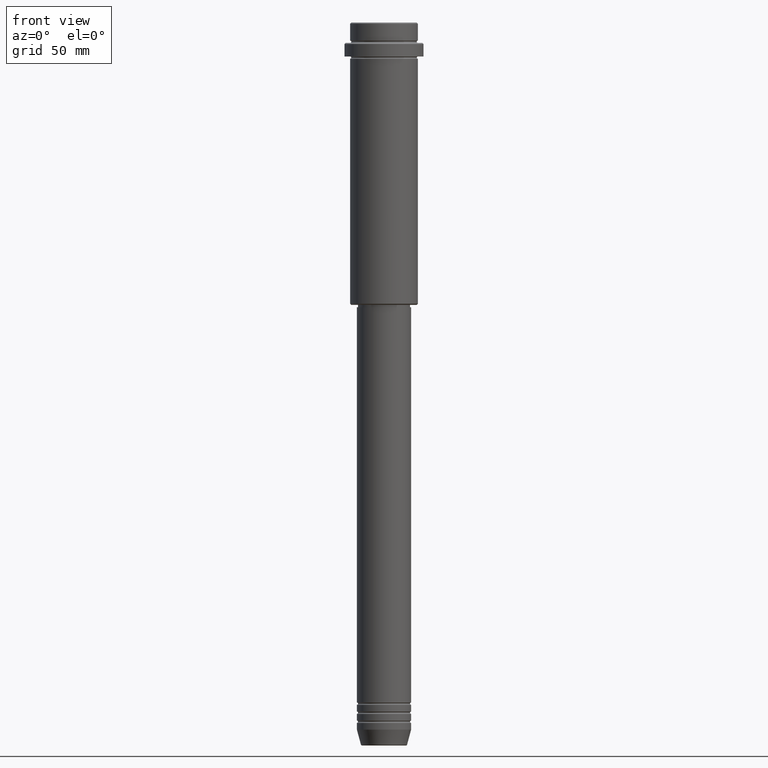
[diagram: clean part render]
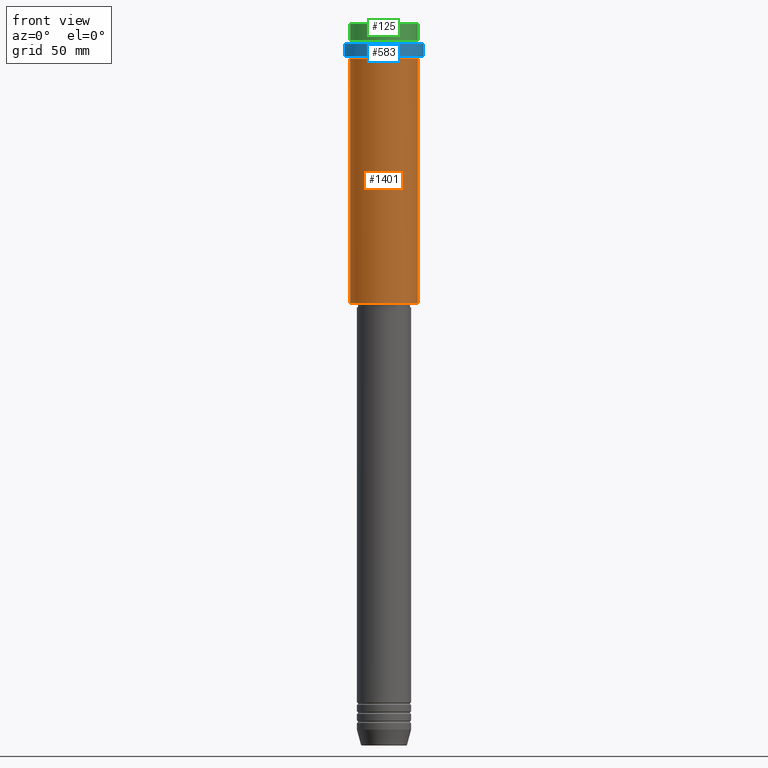
[diagram: same view with three faces highlighted in distinct colors, each labeled with its STEP entity id]
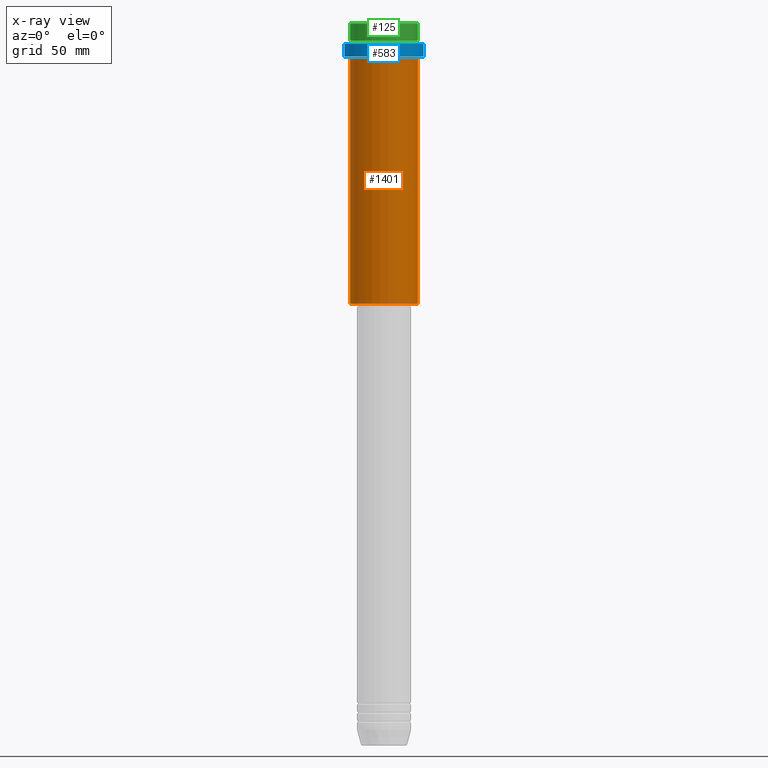
[diagram: x-ray of the same camera — body ghosted, the three highlighted faces saturated]
A machine part, front view with three faces highlighted in distinct colors.
The next image is the same camera in x-ray (body ghosted, the three faces saturated) — at least one of them is partly hidden behind the body in this view.
Their STEP definitions:

[orange] entity #1401 — the highlighted cylindrical surface (edge-blend (fillet) strip) has radius 15 mm, axis along (-0, -0, 1).
#9 = CYLINDRICAL_SURFACE ( 'NONE', #841, 15.00000000000000000 ) ;
#12 = ORIENTED_EDGE ( 'NONE', *, *, #983, .F. ) ;
#22 = ORIENTED_EDGE ( 'NONE', *, *, #443, .F. ) ;
#61 = CIRCLE ( 'NONE', #655, 15.00000000000000000 ) ;
#78 = DIRECTION ( 'NONE',  ( -0.000000000000000000, -0.000000000000000000, 1.000000000000000000 ) ) ;
#84 = DIRECTION ( 'NONE',  ( -0.000000000000000000, -0.000000000000000000, 1.000000000000000000 ) ) ;
#87 = VECTOR ( 'NONE', #232, 1000.000000000000000 ) ;
#101 = VERTEX_POINT ( 'NONE', #461 ) ;
#126 = FACE_OUTER_BOUND ( 'NONE', #272, .T. ) ;
#137 = DIRECTION ( 'NONE',  ( -1.000000000000000000, 0.000000000000000000, 0.000000000000000000 ) ) ;
#138 = VERTEX_POINT ( 'NONE', #1329 ) ;
#180 = CARTESIAN_POINT ( 'NONE',  ( 0.000000000000000000, 0.000000000000000000, -16.00000000000000000 ) ) ;
#186 = CIRCLE ( 'NONE', #749, 15.00000000000000178 ) ;
#228 = CARTESIAN_POINT ( 'NONE',  ( -15.00000000000000355, 1.836970198721029983E-15, -16.00000000000000000 ) ) ;
#232 = DIRECTION ( 'NONE',  ( -0.000000000000000000, -0.000000000000000000, 1.000000000000000000 ) ) ;
#251 = CARTESIAN_POINT ( 'NONE',  ( 0.000000000000000000, 0.000000000000000000, -124.4999999999998863 ) ) ;
#272 = EDGE_LOOP ( 'NONE', ( #12, #589, #491, #22 ) ) ;
#386 = EDGE_CURVE ( 'NONE', #138, #931, #851, .T. ) ;
#443 = EDGE_CURVE ( 'NONE', #1412, #931, #186, .T. ) ;
#461 = CARTESIAN_POINT ( 'NONE',  ( -15.00000000000000000, 1.836970198721029589E-15, -124.4999999999998863 ) ) ;
#491 = ORIENTED_EDGE ( 'NONE', *, *, #386, .T. ) ;
#507 = CARTESIAN_POINT ( 'NONE',  ( 15.00000000000000178, 0.000000000000000000, -16.00000000000000000 ) ) ;
#557 = DIRECTION ( 'NONE',  ( -0.000000000000000000, -0.000000000000000000, 1.000000000000000000 ) ) ;
#589 = ORIENTED_EDGE ( 'NONE', *, *, #652, .T. ) ;
#639 = DIRECTION ( 'NONE',  ( -0.000000000000000000, -0.000000000000000000, 1.000000000000000000 ) ) ;
#652 = EDGE_CURVE ( 'NONE', #101, #138, #61, .T. ) ;
#655 = AXIS2_PLACEMENT_3D ( 'NONE', #251, #557, #137 ) ;
#749 = AXIS2_PLACEMENT_3D ( 'NONE', #180, #84, #1155 ) ;
#774 = CARTESIAN_POINT ( 'NONE',  ( 0.000000000000000000, 0.000000000000000000, 0.000000000000000000 ) ) ;
#841 = AXIS2_PLACEMENT_3D ( 'NONE', #774, #639, #1201 ) ;
#851 = LINE ( 'NONE', #1050, #1249 ) ;
#882 = CARTESIAN_POINT ( 'NONE',  ( -15.00000000000000000, 1.836970198721029589E-15, 0.000000000000000000 ) ) ;
#931 = VERTEX_POINT ( 'NONE', #507 ) ;
#981 = LINE ( 'NONE', #882, #87 ) ;
#983 = EDGE_CURVE ( 'NONE', #101, #1412, #981, .T. ) ;
#1050 = CARTESIAN_POINT ( 'NONE',  ( 15.00000000000000000, 0.000000000000000000, 0.000000000000000000 ) ) ;
#1155 = DIRECTION ( 'NONE',  ( 1.000000000000000000, 0.000000000000000000, 0.000000000000000000 ) ) ;
#1201 = DIRECTION ( 'NONE',  ( 1.000000000000000000, 0.000000000000000000, 0.000000000000000000 ) ) ;
#1249 = VECTOR ( 'NONE', #78, 1000.000000000000000 ) ;
#1329 = CARTESIAN_POINT ( 'NONE',  ( 15.00000000000000000, 0.000000000000000000, -124.4999999999998863 ) ) ;
#1401 = ADVANCED_FACE ( 'NONE', ( #126 ), #9, .T. ) ;
#1412 = VERTEX_POINT ( 'NONE', #228 ) ;

[blue] entity #583 — the highlighted cylindrical surface (partial cylindrical patch) has radius 17.5 mm, axis along (-0, -0, 1).
#51 = DIRECTION ( 'NONE',  ( 0.000000000000000000, 0.000000000000000000, -1.000000000000000000 ) ) ;
#142 = CARTESIAN_POINT ( 'NONE',  ( 17.50000000000000000, 0.000000000000000000, 0.000000000000000000 ) ) ;
#184 = VERTEX_POINT ( 'NONE', #361 ) ;
#219 = DIRECTION ( 'NONE',  ( -0.000000000000000000, -0.000000000000000000, 1.000000000000000000 ) ) ;
#265 = ORIENTED_EDGE ( 'NONE', *, *, #790, .T. ) ;
#269 = CARTESIAN_POINT ( 'NONE',  ( -17.50000000000000000, 2.143131898507868248E-15, 0.000000000000000000 ) ) ;
#351 = CYLINDRICAL_SURFACE ( 'NONE', #842, 17.50000000000000000 ) ;
#361 = CARTESIAN_POINT ( 'NONE',  ( 17.50000000000000000, 0.000000000000000000, -15.00000000000000178 ) ) ;
#444 = ORIENTED_EDGE ( 'NONE', *, *, #687, .F. ) ;
#446 = EDGE_CURVE ( 'NONE', #1379, #184, #638, .T. ) ;
#463 = CARTESIAN_POINT ( 'NONE',  ( 0.000000000000000000, 0.000000000000000000, -9.500000000000028422 ) ) ;
#470 = DIRECTION ( 'NONE',  ( -0.000000000000000000, -0.000000000000000000, 1.000000000000000000 ) ) ;
#523 = CIRCLE ( 'NONE', #770, 17.50000000000000000 ) ;
#539 = FACE_OUTER_BOUND ( 'NONE', #1301, .T. ) ;
#583 = ADVANCED_FACE ( 'NONE', ( #539 ), #351, .T. ) ;
#591 = VECTOR ( 'NONE', #1346, 1000.000000000000000 ) ;
#601 = DIRECTION ( 'NONE',  ( 1.000000000000000000, 0.000000000000000000, 0.000000000000000000 ) ) ;
#638 = CIRCLE ( 'NONE', #1209, 17.50000000000000000 ) ;
#672 = VERTEX_POINT ( 'NONE', #1333 ) ;
#684 = LINE ( 'NONE', #142, #744 ) ;
#687 = EDGE_CURVE ( 'NONE', #1379, #1042, #819, .T. ) ;
#744 = VECTOR ( 'NONE', #470, 1000.000000000000000 ) ;
#756 = DIRECTION ( 'NONE',  ( 1.000000000000000000, 0.000000000000000000, 0.000000000000000000 ) ) ;
#757 = ORIENTED_EDGE ( 'NONE', *, *, #446, .T. ) ;
#770 = AXIS2_PLACEMENT_3D ( 'NONE', #463, #51, #601 ) ;
#790 = EDGE_CURVE ( 'NONE', #184, #672, #684, .T. ) ;
#819 = LINE ( 'NONE', #269, #591 ) ;
#832 = DIRECTION ( 'NONE',  ( -0.000000000000000000, -0.000000000000000000, 1.000000000000000000 ) ) ;
#842 = AXIS2_PLACEMENT_3D ( 'NONE', #896, #219, #756 ) ;
#843 = CARTESIAN_POINT ( 'NONE',  ( 0.000000000000000000, 0.000000000000000000, -15.00000000000000178 ) ) ;
#896 = CARTESIAN_POINT ( 'NONE',  ( 0.000000000000000000, 0.000000000000000000, 0.000000000000000000 ) ) ;
#1029 = ORIENTED_EDGE ( 'NONE', *, *, #1128, .T. ) ;
#1042 = VERTEX_POINT ( 'NONE', #1105 ) ;
#1105 = CARTESIAN_POINT ( 'NONE',  ( -17.50000000000000000, 2.143131898507868248E-15, -9.500000000000028422 ) ) ;
#1128 = EDGE_CURVE ( 'NONE', #672, #1042, #523, .T. ) ;
#1171 = DIRECTION ( 'NONE',  ( 1.000000000000000000, 0.000000000000000000, 0.000000000000000000 ) ) ;
#1209 = AXIS2_PLACEMENT_3D ( 'NONE', #843, #832, #1171 ) ;
#1301 = EDGE_LOOP ( 'NONE', ( #444, #757, #265, #1029 ) ) ;
#1333 = CARTESIAN_POINT ( 'NONE',  ( 17.50000000000000000, 0.000000000000000000, -9.500000000000028422 ) ) ;
#1346 = DIRECTION ( 'NONE',  ( -0.000000000000000000, -0.000000000000000000, 1.000000000000000000 ) ) ;
#1376 = CARTESIAN_POINT ( 'NONE',  ( -17.50000000000000000, 2.143131898507868248E-15, -15.00000000000000178 ) ) ;
#1379 = VERTEX_POINT ( 'NONE', #1376 ) ;

[green] entity #125 — the highlighted cylindrical surface (edge-blend (fillet) strip) has radius 15 mm, axis along (-0, -0, 1).
#13 = VECTOR ( 'NONE', #1193, 1000.000000000000000 ) ;
#64 = VERTEX_POINT ( 'NONE', #848 ) ;
#125 = ADVANCED_FACE ( 'NONE', ( #1228 ), #784, .T. ) ;
#162 = AXIS2_PLACEMENT_3D ( 'NONE', #1064, #205, #301 ) ;
#197 = DIRECTION ( 'NONE',  ( 1.000000000000000000, 0.000000000000000000, 0.000000000000000000 ) ) ;
#205 = DIRECTION ( 'NONE',  ( 0.000000000000000000, 0.000000000000000000, -1.000000000000000000 ) ) ;
#301 = DIRECTION ( 'NONE',  ( 1.000000000000000000, 0.000000000000000000, 0.000000000000000000 ) ) ;
#367 = DIRECTION ( 'NONE',  ( -0.000000000000000000, -0.000000000000000000, 1.000000000000000000 ) ) ;
#388 = AXIS2_PLACEMENT_3D ( 'NONE', #830, #837, #197 ) ;
#401 = CARTESIAN_POINT ( 'NONE',  ( 15.00000000000000000, 0.000000000000000000, -0.4999999999999553690 ) ) ;
#403 = EDGE_CURVE ( 'NONE', #863, #1144, #773, .T. ) ;
#405 = VERTEX_POINT ( 'NONE', #1274 ) ;
#492 = CARTESIAN_POINT ( 'NONE',  ( -15.00000000000000000, 1.836970198721029589E-15, -0.4999999999999553690 ) ) ;
#540 = VECTOR ( 'NONE', #367, 1000.000000000000000 ) ;
#607 = CARTESIAN_POINT ( 'NONE',  ( 15.00000000000000000, 0.000000000000000000, 0.000000000000000000 ) ) ;
#615 = CIRCLE ( 'NONE', #388, 15.00000000000000000 ) ;
#624 = ORIENTED_EDGE ( 'NONE', *, *, #721, .T. ) ;
#656 = DIRECTION ( 'NONE',  ( -0.000000000000000000, -0.000000000000000000, 1.000000000000000000 ) ) ;
#721 = EDGE_CURVE ( 'NONE', #64, #863, #922, .T. ) ;
#760 = CARTESIAN_POINT ( 'NONE',  ( -15.00000000000000000, 1.836970198721029589E-15, 0.000000000000000000 ) ) ;
#773 = CIRCLE ( 'NONE', #162, 15.00000000000000000 ) ;
#784 = CYLINDRICAL_SURFACE ( 'NONE', #1207, 15.00000000000000000 ) ;
#788 = CARTESIAN_POINT ( 'NONE',  ( 0.000000000000000000, 0.000000000000000000, 0.000000000000000000 ) ) ;
#830 = CARTESIAN_POINT ( 'NONE',  ( 0.000000000000000000, 0.000000000000000000, -7.999999999999998224 ) ) ;
#837 = DIRECTION ( 'NONE',  ( -0.000000000000000000, -0.000000000000000000, 1.000000000000000000 ) ) ;
#848 = CARTESIAN_POINT ( 'NONE',  ( 15.00000000000000000, 0.000000000000000000, -7.999999999999998224 ) ) ;
#863 = VERTEX_POINT ( 'NONE', #401 ) ;
#865 = EDGE_LOOP ( 'NONE', ( #1143, #1102, #624, #1284 ) ) ;
#922 = LINE ( 'NONE', #607, #540 ) ;
#946 = EDGE_CURVE ( 'NONE', #405, #64, #615, .T. ) ;
#1034 = EDGE_CURVE ( 'NONE', #405, #1144, #1218, .T. ) ;
#1064 = CARTESIAN_POINT ( 'NONE',  ( 0.000000000000000000, 0.000000000000000000, -0.4999999999999553690 ) ) ;
#1102 = ORIENTED_EDGE ( 'NONE', *, *, #946, .T. ) ;
#1143 = ORIENTED_EDGE ( 'NONE', *, *, #1034, .F. ) ;
#1144 = VERTEX_POINT ( 'NONE', #492 ) ;
#1193 = DIRECTION ( 'NONE',  ( -0.000000000000000000, -0.000000000000000000, 1.000000000000000000 ) ) ;
#1207 = AXIS2_PLACEMENT_3D ( 'NONE', #788, #656, #1304 ) ;
#1218 = LINE ( 'NONE', #760, #13 ) ;
#1228 = FACE_OUTER_BOUND ( 'NONE', #865, .T. ) ;
#1274 = CARTESIAN_POINT ( 'NONE',  ( -15.00000000000000000, 1.836970198721029589E-15, -7.999999999999998224 ) ) ;
#1284 = ORIENTED_EDGE ( 'NONE', *, *, #403, .T. ) ;
#1304 = DIRECTION ( 'NONE',  ( 1.000000000000000000, 0.000000000000000000, 0.000000000000000000 ) ) ;